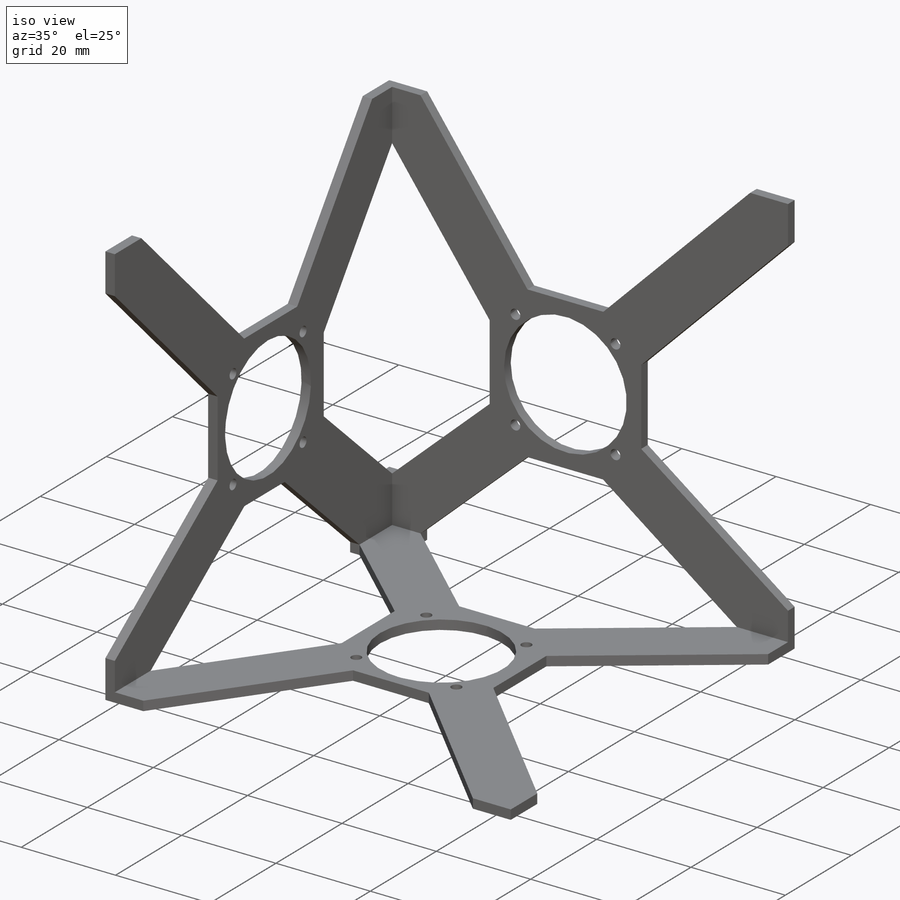
[diagram: iso view]
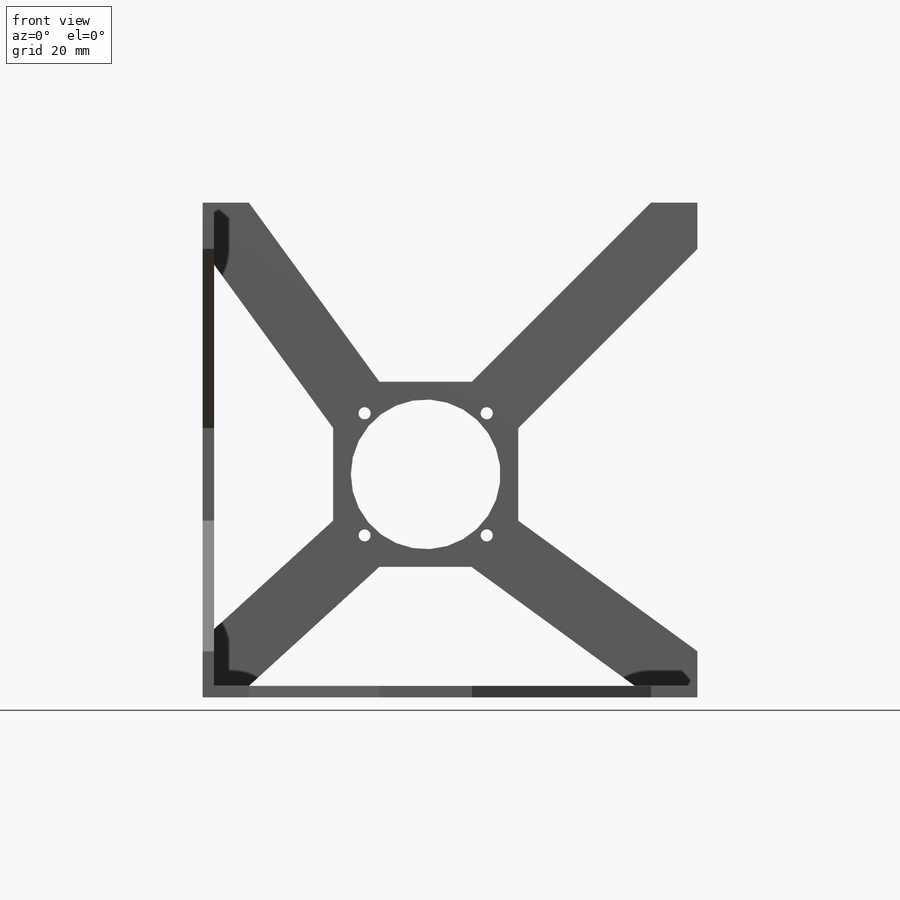
[diagram: front view]
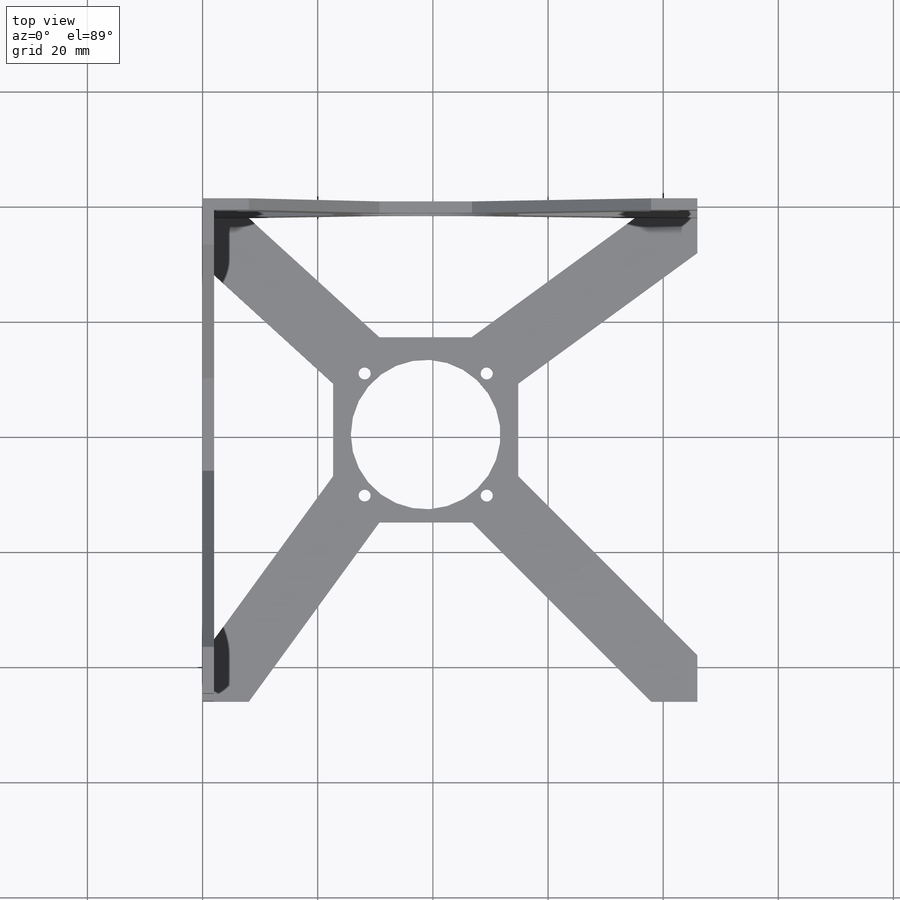
[diagram: top view]
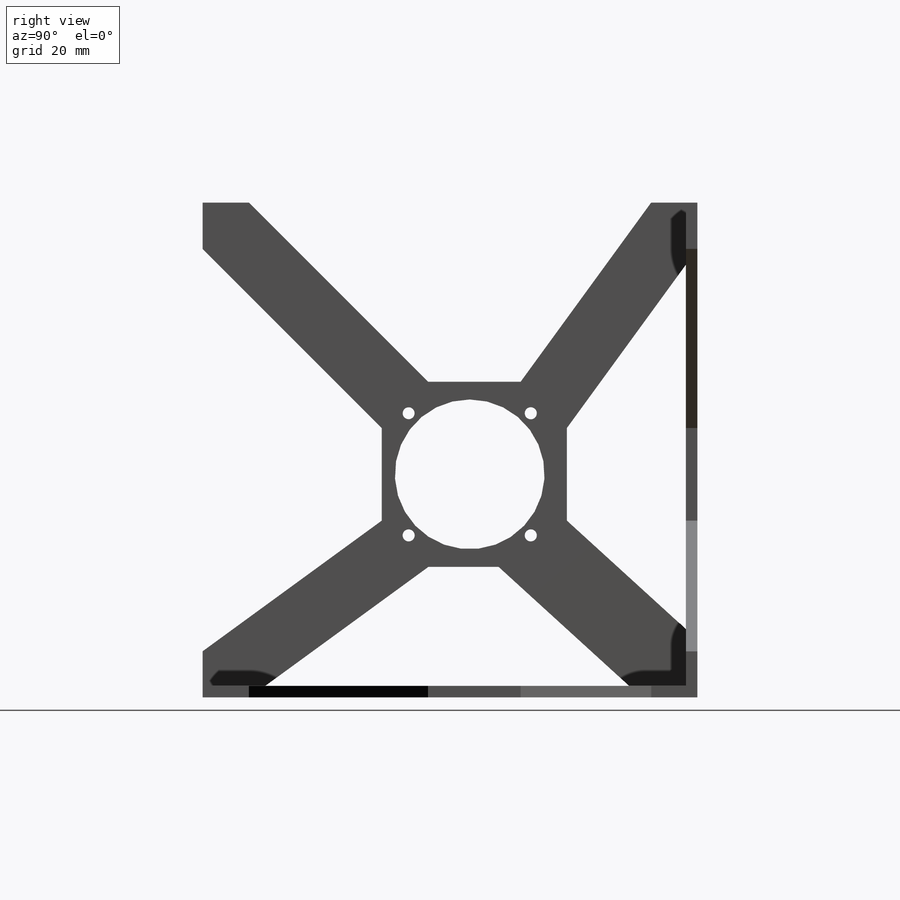
[diagram: right view]
SOLIDWORKS PART (.sldprt)
format: sldprt  version: not decoded by parser v0  size: 509,440 bytes
history: native  units: mm
features: sketch x7, cut_extrude x5, extrude x4, plane x2, mirror x2, material x1 (+16 scaffold rows collapsed)
feature tree (37):
  scaffold x16  (default folders/planes/origin — collapsed)
  material  "1060 Alloy"
  sketch  "Sketch1"  dims[D1=85.95mm D2=85.95mm]
  extrude  "Boss-Extrude1"  Depth=85.95mm
  sketch  "Sketch2"  dims[D1=83.95mm D2=83.95mm]
  cut_extrude  "Cut-Extrude1"  Depth=83.95mm
  extrude  "Assem14^3dv1<1>@3dv1/2610T<1>@Assem14^3dv11"  [1 undecoded]
  extrude  "Assem14^3dv1<2>@3dv1/2610T<1>@Assem14^3dv11"  [1 undecoded]
  sketch  "Sketch4"  dims[D1=10.0mm D2=10.0mm D3=10.0mm D4=10.0mm]
  cut_extrude  "Cut-Extrude3"  [1 undecoded]
  plane  "Plane1"
  mirror  "Mirror1"
  plane  "Plane2"
  mirror  "Mirror2"
  sketch  "Sketch6"
  extrude  "Boss-Extrude2"  [1 undecoded]
  sketch  "Sketch8"
  cut_extrude  "Cut-Extrude4"  [1 undecoded]
  sketch  "Sketch9"
  cut_extrude  "Cut-Extrude5"  [1 undecoded]
  sketch  "Sketch10"
  cut_extrude  "Cut-Extrude6"  [1 undecoded]
decode coverage: 5 of 18 modeling features carry decoded parameters
note: 7 parameter values undecoded
summary: no parameter record found for 7 features
note: suppression state not decoded; provenance and decode notes live in map.json
